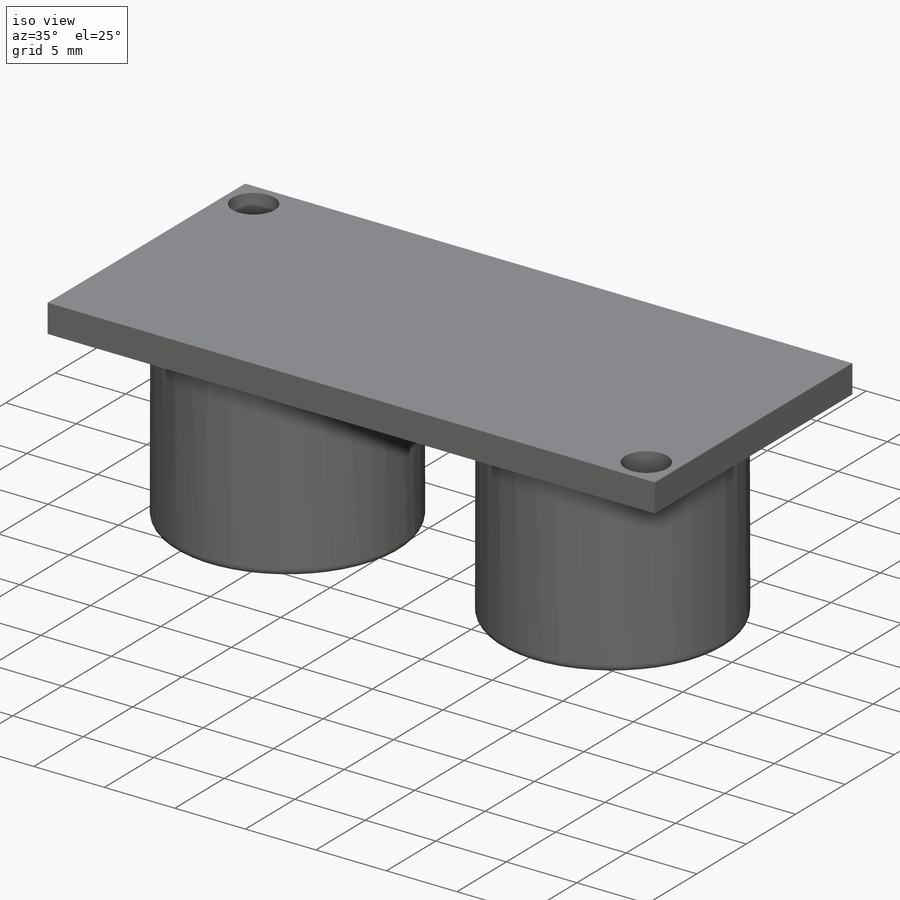
[diagram: iso view]
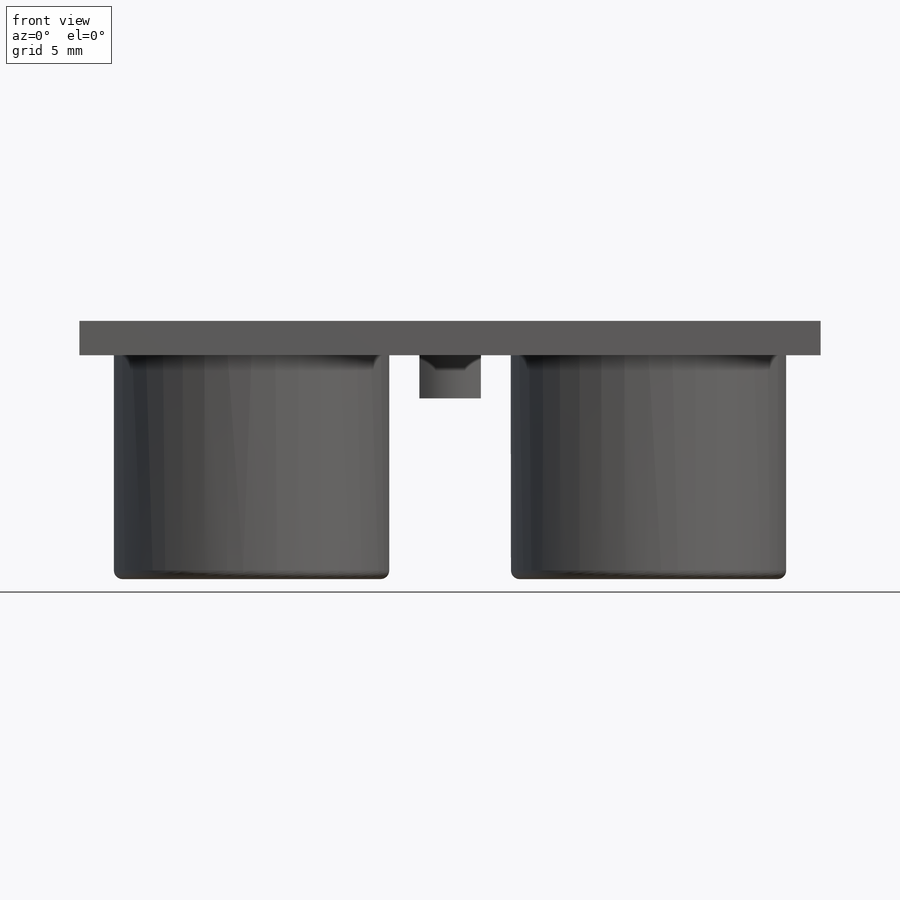
[diagram: front view]
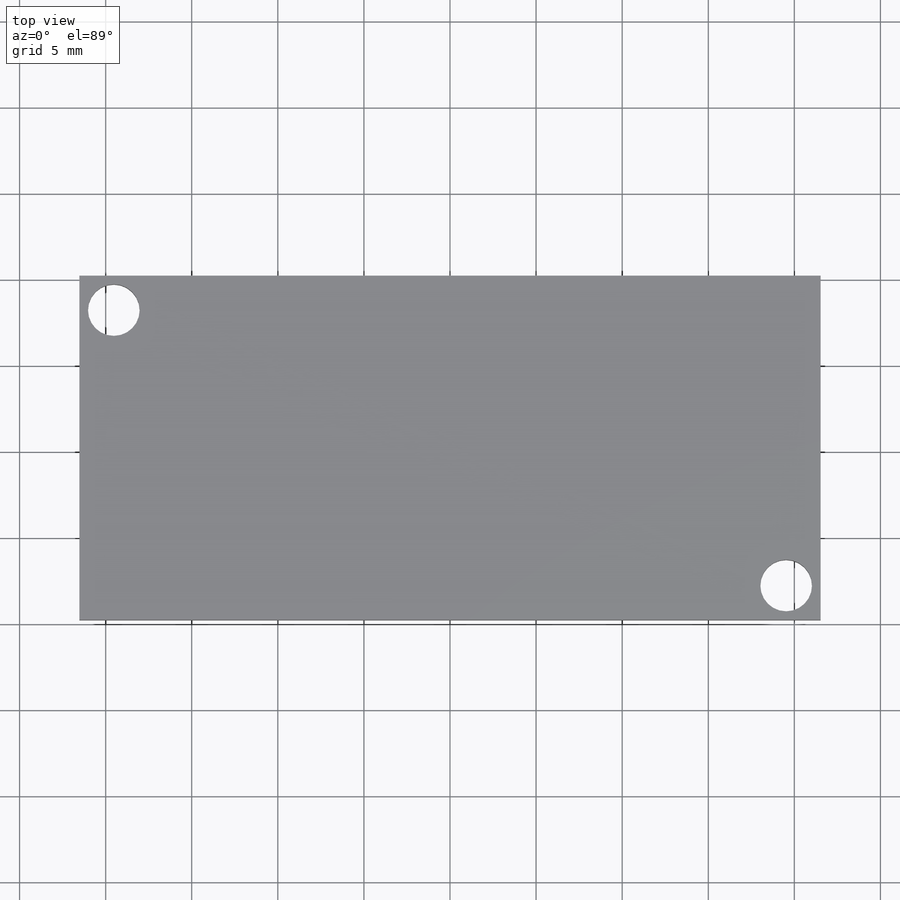
[diagram: top view]
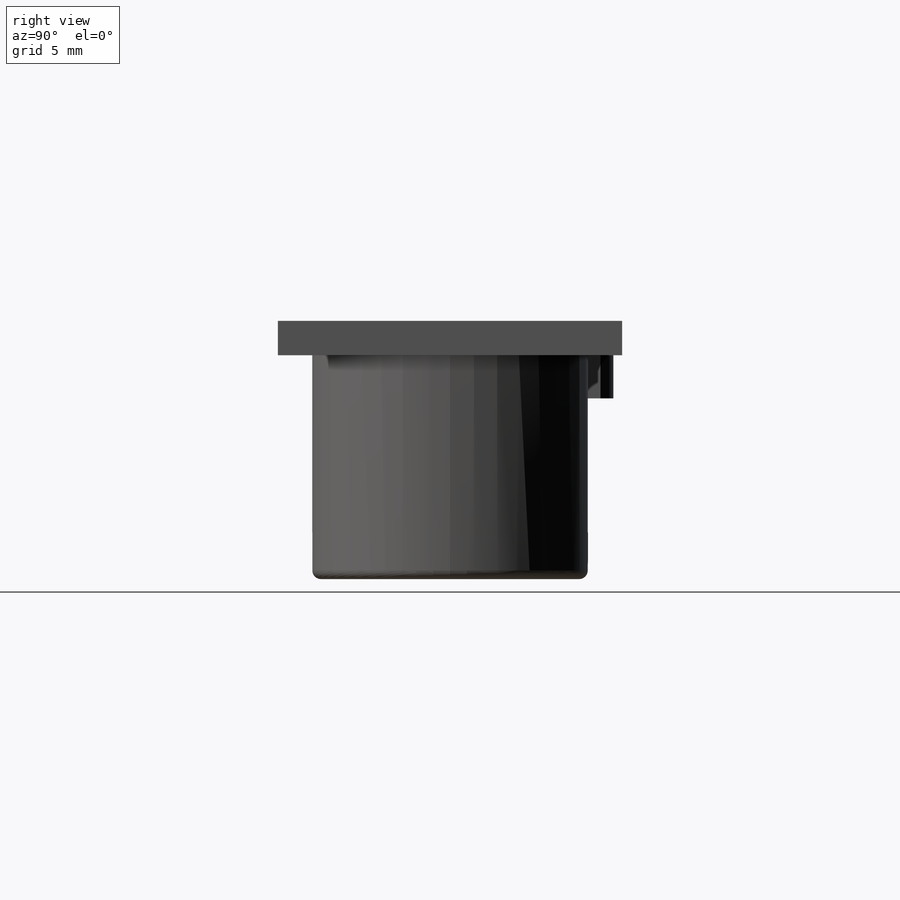
[diagram: right view]
SOLIDWORKS PART (.sldprt)
format: sldprt  version: not decoded by parser v0  size: 274,432 bytes
history: native  units: mm
features: sketch x6, plane x5, extrude x2, revolve x2, material x1, hole x1, fillet x1 (+10 scaffold rows collapsed)
feature tree (28):
  scaffold x10  (default folders/planes/origin — collapsed)
  material  "Elaborazione scheda, Semplice"
  plane  "Piano frontale"
  plane  "Piano superiore"
  plane  "Piano destro"
  plane  "Piano1"
  sketch  "Schizzo1"  dims[D1=43.05mm D2=20.0mm]
  extrude  "Estrusione-Estrusione1"  Depth=2mm
  sketch  "Schizzo2"  dims[c1.D1=2.5mm c1.D2=2.5mm c1.D3=~19.748489mm c1.D4=21.525mm c1.D5=~23.319125mm c1.D6=~15.24102mm c1.D7=~15.25899mm c1.D8=17.0mm c1.D9=~18.74101mm c1.D10=~18.75898mm c2.D6=~15.24102mm]
  extrude  "Estrusione-Estrusione2"  Depth=2.5mm
  plane  "Piano2"
  sketch  "Schizzo3"  dims[D1=8.0mm D2=13.0mm]
  revolve  "Rivoluzione1"  Angle=360deg
  sketch  "Schizzo4"  dims[D1=8.0mm D2=13.0mm]
  revolve  "Rivoluzione2"  Angle=360deg
  hole  "Foro Ø3.0 (3)-1"  Diameter=3mm Depth=15mm
  sketch  "Schizzo6"
  sketch  "Schizzo5"  dims[hole-wizard template sketch: 61 standard entries collapsed; hole parameters above]
  fillet  "Raccordo1"  Radius=0.5mm
decode coverage: 11 of 12 modeling features carry decoded parameters
note: ~ marks probable driven/reference dimensions
note: suppression state not decoded; provenance and decode notes live in map.json
